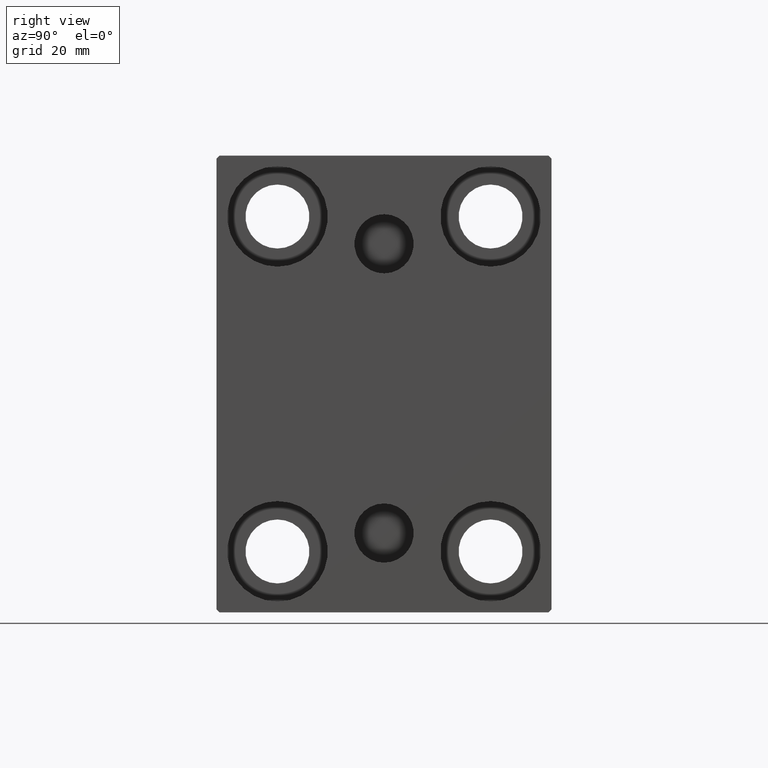
[diagram: clean part render]
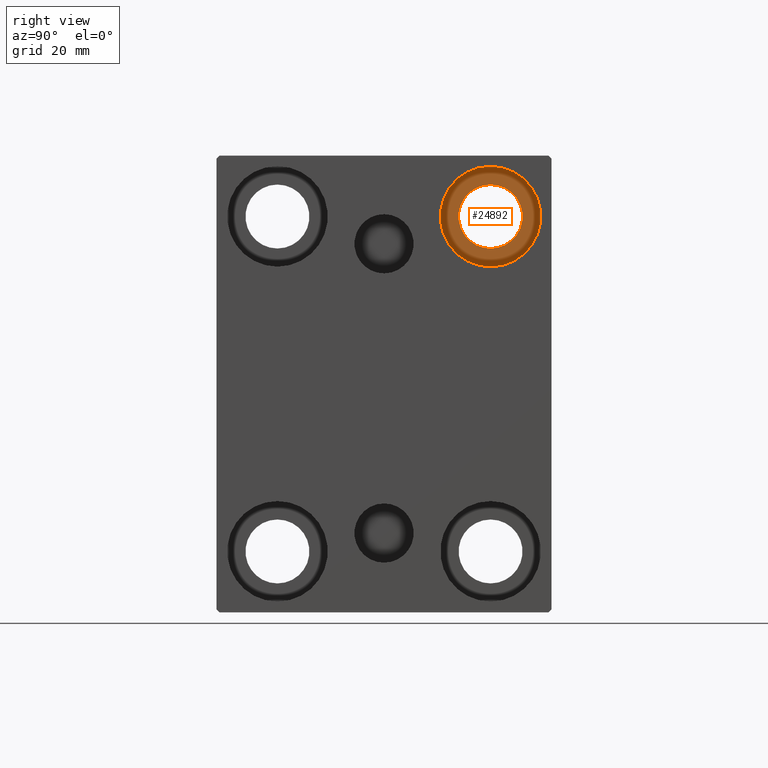
[diagram: same view with one face highlighted and labeled with its STEP entity id]
A machine part, right view. The second image highlights one B-rep face of the part: STEP entity #24892.
In plain terms, the highlighted planar face has unit normal (1, 0, 0).
Its self-contained STEP definition (entity closure, byte-faithful):
#54 = CARTESIAN_POINT ( 'NONE',  ( 54.00000000000000711, 17.50000000000000355, 32.74999999999999289 ) ) ;
#186 = VERTEX_POINT ( 'NONE', #25193 ) ;
#246 = ORIENTED_EDGE ( 'NONE', *, *, #26331, .T. ) ;
#618 = VERTEX_POINT ( 'NONE', #6469 ) ;
#877 = DIRECTION ( 'NONE',  ( 1.000000000000000000, 0.000000000000000000, -0.000000000000000000 ) ) ;
#1351 = AXIS2_PLACEMENT_3D ( 'NONE', #13429, #39626, #40507 ) ;
#1604 = EDGE_CURVE ( 'NONE', #37038, #186, #37696, .T. ) ;
#2288 = DIRECTION ( 'NONE',  ( -1.000000000000000000, -0.000000000000000000, -0.000000000000000000 ) ) ;
#4183 = CIRCLE ( 'NONE', #1351, 5.249999999999997335 ) ;
#6048 = AXIS2_PLACEMENT_3D ( 'NONE', #12418, #2288, #15749 ) ;
#6469 = CARTESIAN_POINT ( 'NONE',  ( 54.00000000000000711, 17.50000000000000355, 22.25000000000000000 ) ) ;
#7069 = CARTESIAN_POINT ( 'NONE',  ( 54.00000000000000711, 0.000000000000000000, 0.000000000000000000 ) ) ;
#7377 = EDGE_CURVE ( 'NONE', #186, #37038, #18829, .T. ) ;
#11824 = DIRECTION ( 'NONE',  ( 0.000000000000000000, 0.000000000000000000, -1.000000000000000000 ) ) ;
#12418 = CARTESIAN_POINT ( 'NONE',  ( 54.00000000000000711, 17.50000000000000355, 27.49999999999999645 ) ) ;
#13429 = CARTESIAN_POINT ( 'NONE',  ( 54.00000000000000711, 17.50000000000000355, 27.49999999999999645 ) ) ;
#14281 = ORIENTED_EDGE ( 'NONE', *, *, #15959, .T. ) ;
#14542 = PLANE ( 'NONE',  #37446 ) ;
#15362 = DIRECTION ( 'NONE',  ( -1.000000000000000000, -0.000000000000000000, -0.000000000000000000 ) ) ;
#15749 = DIRECTION ( 'NONE',  ( 0.000000000000000000, 0.000000000000000000, 1.000000000000000000 ) ) ;
#15959 = EDGE_CURVE ( 'NONE', #618, #38210, #4183, .T. ) ;
#18829 = CIRCLE ( 'NONE', #42060, 8.249999999999992895 ) ;
#20146 = DIRECTION ( 'NONE',  ( 0.000000000000000000, 0.000000000000000000, 1.000000000000000000 ) ) ;
#22186 = CARTESIAN_POINT ( 'NONE',  ( 54.00000000000000711, 17.50000000000000355, 27.49999999999999645 ) ) ;
#23162 = FACE_OUTER_BOUND ( 'NONE', #23617, .T. ) ;
#23617 = EDGE_LOOP ( 'NONE', ( #24945, #33624 ) ) ;
#24892 = ADVANCED_FACE ( 'NONE', ( #23162, #27975 ), #14542, .T. ) ;
#24945 = ORIENTED_EDGE ( 'NONE', *, *, #7377, .F. ) ;
#25193 = CARTESIAN_POINT ( 'NONE',  ( 54.00000000000000711, 17.50000000000000355, 19.25000000000000000 ) ) ;
#26331 = EDGE_CURVE ( 'NONE', #38210, #618, #29748, .T. ) ;
#27975 = FACE_BOUND ( 'NONE', #28302, .T. ) ;
#28302 = EDGE_LOOP ( 'NONE', ( #246, #14281 ) ) ;
#29748 = CIRCLE ( 'NONE', #37477, 5.249999999999997335 ) ;
#30842 = DIRECTION ( 'NONE',  ( 0.000000000000000000, 0.000000000000000000, 1.000000000000000000 ) ) ;
#33624 = ORIENTED_EDGE ( 'NONE', *, *, #1604, .F. ) ;
#37038 = VERTEX_POINT ( 'NONE', #38456 ) ;
#37446 = AXIS2_PLACEMENT_3D ( 'NONE', #7069, #877, #30842 ) ;
#37477 = AXIS2_PLACEMENT_3D ( 'NONE', #22186, #15362, #11824 ) ;
#37696 = CIRCLE ( 'NONE', #6048, 8.249999999999992895 ) ;
#38210 = VERTEX_POINT ( 'NONE', #54 ) ;
#38456 = CARTESIAN_POINT ( 'NONE',  ( 54.00000000000000711, 17.50000000000000355, 35.74999999999999289 ) ) ;
#39626 = DIRECTION ( 'NONE',  ( -1.000000000000000000, -0.000000000000000000, -0.000000000000000000 ) ) ;
#40187 = DIRECTION ( 'NONE',  ( -1.000000000000000000, -0.000000000000000000, -0.000000000000000000 ) ) ;
#40507 = DIRECTION ( 'NONE',  ( 0.000000000000000000, 0.000000000000000000, -1.000000000000000000 ) ) ;
#40835 = CARTESIAN_POINT ( 'NONE',  ( 54.00000000000000711, 17.50000000000000355, 27.49999999999999645 ) ) ;
#42060 = AXIS2_PLACEMENT_3D ( 'NONE', #40835, #40187, #20146 ) ;